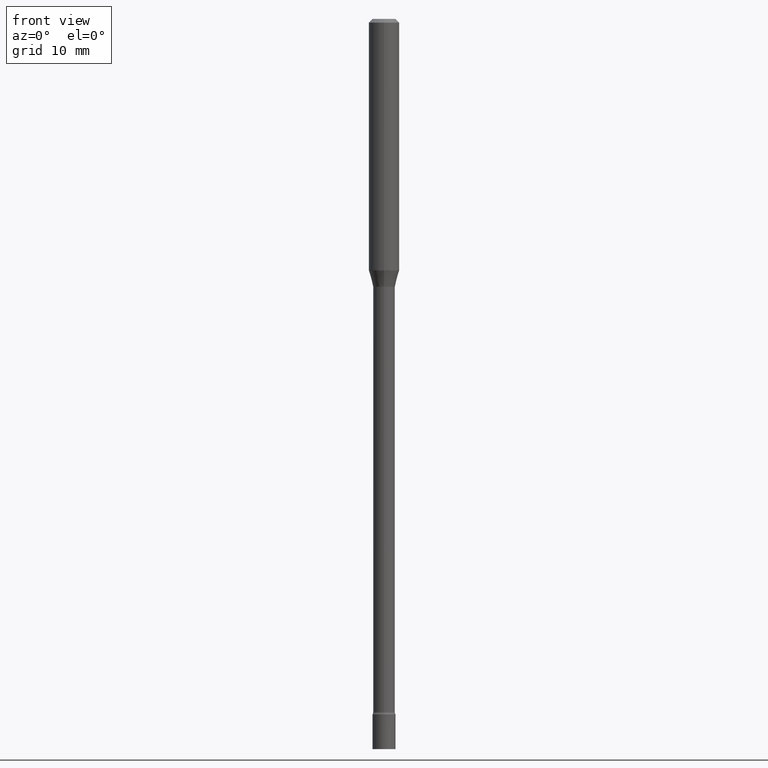
[diagram: clean part render]
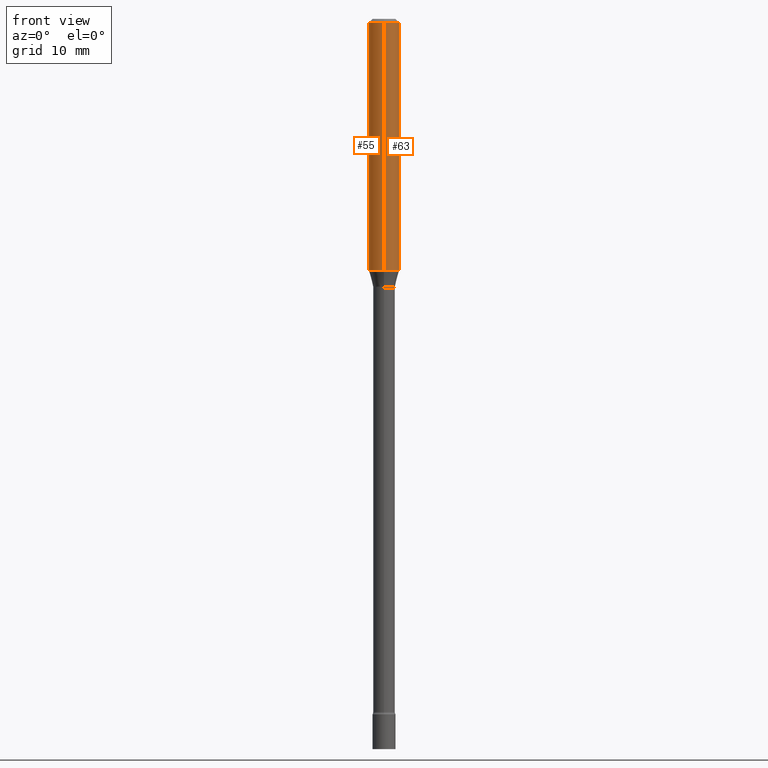
[diagram: same view with one multi-face feature highlighted, each face labeled with its STEP entity id]
A machine part, front view. The highlighted faces form ONE feature: a constant-radius fillet chain: 2 tangent blend faces with common blend radius 1.5875 mm. The faces share edges in the B-rep.
Their STEP definitions:
[1] entity #63 (Cylinder):
#3 = LINE ( 'NONE', #37, #436 ) ;
#16 = DIRECTION ( 'NONE',  ( -2.445476016362466426E-29, 3.491471013458831369E-15, 1.000000000000000000 ) ) ;
#22 = AXIS2_PLACEMENT_3D ( 'NONE', #224, #221, #446 ) ;
#27 = ORIENTED_EDGE ( 'NONE', *, *, #169, .T. ) ;
#37 = CARTESIAN_POINT ( 'NONE',  ( -4.364351673553916201E-16, -0.06250000000000000000, 2.182169383411769606E-16 ) ) ;
#59 = CARTESIAN_POINT ( 'NONE',  ( 2.527113080758372213E-29, -3.608026417010140878E-15, -1.033382893084896059 ) ) ;
#63 = ADVANCED_FACE ( 'NONE', ( #249 ), #403, .T. ) ;
#65 = VERTEX_POINT ( 'NONE', #398 ) ;
#79 = EDGE_CURVE ( 'NONE', #65, #240, #3, .T. ) ;
#101 = ORIENTED_EDGE ( 'NONE', *, *, #255, .T. ) ;
#119 = DIRECTION ( 'NONE',  ( -2.445476016362466426E-29, 3.491471013458831369E-15, 1.000000000000000000 ) ) ;
#123 = DIRECTION ( 'NONE',  ( -2.445476016362466426E-29, 3.491471013458831369E-15, 1.000000000000000000 ) ) ;
#169 = EDGE_CURVE ( 'NONE', #65, #410, #482, .T. ) ;
#170 = DIRECTION ( 'NONE',  ( -2.445476016362466426E-29, 3.491471013458831369E-15, 1.000000000000000000 ) ) ;
#171 = ORIENTED_EDGE ( 'NONE', *, *, #79, .F. ) ;
#192 = DIRECTION ( 'NONE',  ( -6.982962677686265922E-15, -1.000000000000000000, 4.370956789862821150E-15 ) ) ;
#213 = CARTESIAN_POINT ( 'NONE',  ( 0.000000000000000000, 0.000000000000000000, 0.000000000000000000 ) ) ;
#218 = CIRCLE ( 'NONE', #22, 0.06250000000000000000 ) ;
#219 = CARTESIAN_POINT ( 'NONE',  ( 4.440892098500877611E-16, 0.06249999999999638484, -1.033382893084896281 ) ) ;
#221 = DIRECTION ( 'NONE',  ( -2.445476016362466426E-29, 3.491471013458831369E-15, 1.000000000000000000 ) ) ;
#224 = CARTESIAN_POINT ( 'NONE',  ( 3.668214024543707189E-31, -5.237206520188257629E-17, -0.01500000000000003067 ) ) ;
#236 = AXIS2_PLACEMENT_3D ( 'NONE', #59, #16, #192 ) ;
#240 = VERTEX_POINT ( 'NONE', #242 ) ;
#242 = CARTESIAN_POINT ( 'NONE',  ( -4.364351673553912750E-16, -0.06250000000000005551, -0.01499999999999981209 ) ) ;
#244 = LINE ( 'NONE', #440, #450 ) ;
#249 = FACE_OUTER_BOUND ( 'NONE', #392, .T. ) ;
#250 = VERTEX_POINT ( 'NONE', #362 ) ;
#255 = EDGE_CURVE ( 'NONE', #410, #250, #244, .T. ) ;
#307 = AXIS2_PLACEMENT_3D ( 'NONE', #213, #123, #518 ) ;
#362 = CARTESIAN_POINT ( 'NONE',  ( 4.440892098500879583E-16, 0.06249999999999995143, -0.01500000000000024751 ) ) ;
#392 = EDGE_LOOP ( 'NONE', ( #27, #101, #474, #171 ) ) ;
#398 = CARTESIAN_POINT ( 'NONE',  ( -4.364351673553663766E-16, -0.06250000000000360822, -1.033382893084895837 ) ) ;
#403 = CYLINDRICAL_SURFACE ( 'NONE', #307, 0.06250000000000000000 ) ;
#410 = VERTEX_POINT ( 'NONE', #219 ) ;
#436 = VECTOR ( 'NONE', #170, 39.37007874015748143 ) ;
#440 = CARTESIAN_POINT ( 'NONE',  ( 4.440892098500625669E-16, 0.06250000000000000000, -2.182169383411769606E-16 ) ) ;
#446 = DIRECTION ( 'NONE',  ( -6.982962677686265922E-15, -1.000000000000000000, 3.483106191921935554E-15 ) ) ;
#450 = VECTOR ( 'NONE', #119, 39.37007874015748143 ) ;
#474 = ORIENTED_EDGE ( 'NONE', *, *, #491, .F. ) ;
#482 = CIRCLE ( 'NONE', #236, 0.06250000000000000000 ) ;
#491 = EDGE_CURVE ( 'NONE', #240, #250, #218, .T. ) ;
#518 = DIRECTION ( 'NONE',  ( -6.982962677686265922E-15, -1.000000000000000000, 3.491471013458831369E-15 ) ) ;
[2] entity #55 (Cylinder):
#1 = CYLINDRICAL_SURFACE ( 'NONE', #488, 0.06250000000000000000 ) ;
#3 = LINE ( 'NONE', #37, #436 ) ;
#8 = DIRECTION ( 'NONE',  ( -2.445476016362466426E-29, 3.491471013458831369E-15, 1.000000000000000000 ) ) ;
#11 = CIRCLE ( 'NONE', #330, 0.06250000000000000000 ) ;
#37 = CARTESIAN_POINT ( 'NONE',  ( -4.364351673553916201E-16, -0.06250000000000000000, 2.182169383411769606E-16 ) ) ;
#46 = CARTESIAN_POINT ( 'NONE',  ( 2.527113080758372213E-29, -3.608026417010140878E-15, -1.033382893084896059 ) ) ;
#55 = ADVANCED_FACE ( 'NONE', ( #367 ), #1, .T. ) ;
#65 = VERTEX_POINT ( 'NONE', #398 ) ;
#79 = EDGE_CURVE ( 'NONE', #65, #240, #3, .T. ) ;
#94 = DIRECTION ( 'NONE',  ( -6.982962677686265922E-15, -1.000000000000000000, 4.370956789862821150E-15 ) ) ;
#115 = EDGE_CURVE ( 'NONE', #250, #240, #428, .T. ) ;
#118 = DIRECTION ( 'NONE',  ( -2.445476016362466426E-29, 3.491471013458831369E-15, 1.000000000000000000 ) ) ;
#119 = DIRECTION ( 'NONE',  ( -2.445476016362466426E-29, 3.491471013458831369E-15, 1.000000000000000000 ) ) ;
#138 = ORIENTED_EDGE ( 'NONE', *, *, #115, .F. ) ;
#170 = DIRECTION ( 'NONE',  ( -2.445476016362466426E-29, 3.491471013458831369E-15, 1.000000000000000000 ) ) ;
#196 = AXIS2_PLACEMENT_3D ( 'NONE', #216, #118, #286 ) ;
#216 = CARTESIAN_POINT ( 'NONE',  ( 3.668214024543707189E-31, -5.237206520188257629E-17, -0.01500000000000003067 ) ) ;
#219 = CARTESIAN_POINT ( 'NONE',  ( 4.440892098500877611E-16, 0.06249999999999638484, -1.033382893084896281 ) ) ;
#240 = VERTEX_POINT ( 'NONE', #242 ) ;
#242 = CARTESIAN_POINT ( 'NONE',  ( -4.364351673553912750E-16, -0.06250000000000005551, -0.01499999999999981209 ) ) ;
#244 = LINE ( 'NONE', #440, #450 ) ;
#246 = CARTESIAN_POINT ( 'NONE',  ( 0.000000000000000000, 0.000000000000000000, 0.000000000000000000 ) ) ;
#250 = VERTEX_POINT ( 'NONE', #362 ) ;
#255 = EDGE_CURVE ( 'NONE', #410, #250, #244, .T. ) ;
#286 = DIRECTION ( 'NONE',  ( -6.982962677686265922E-15, -1.000000000000000000, 3.483106191921935554E-15 ) ) ;
#330 = AXIS2_PLACEMENT_3D ( 'NONE', #46, #8, #94 ) ;
#362 = CARTESIAN_POINT ( 'NONE',  ( 4.440892098500879583E-16, 0.06249999999999995143, -0.01500000000000024751 ) ) ;
#367 = FACE_OUTER_BOUND ( 'NONE', #368, .T. ) ;
#368 = EDGE_LOOP ( 'NONE', ( #389, #503, #417, #138 ) ) ;
#375 = EDGE_CURVE ( 'NONE', #410, #65, #11, .T. ) ;
#389 = ORIENTED_EDGE ( 'NONE', *, *, #255, .F. ) ;
#398 = CARTESIAN_POINT ( 'NONE',  ( -4.364351673553663766E-16, -0.06250000000000360822, -1.033382893084895837 ) ) ;
#400 = DIRECTION ( 'NONE',  ( -6.982962677686265922E-15, -1.000000000000000000, 3.491471013458831369E-15 ) ) ;
#410 = VERTEX_POINT ( 'NONE', #219 ) ;
#417 = ORIENTED_EDGE ( 'NONE', *, *, #79, .T. ) ;
#428 = CIRCLE ( 'NONE', #196, 0.06250000000000000000 ) ;
#436 = VECTOR ( 'NONE', #170, 39.37007874015748143 ) ;
#440 = CARTESIAN_POINT ( 'NONE',  ( 4.440892098500625669E-16, 0.06250000000000000000, -2.182169383411769606E-16 ) ) ;
#450 = VECTOR ( 'NONE', #119, 39.37007874015748143 ) ;
#488 = AXIS2_PLACEMENT_3D ( 'NONE', #246, #516, #400 ) ;
#503 = ORIENTED_EDGE ( 'NONE', *, *, #375, .T. ) ;
#516 = DIRECTION ( 'NONE',  ( -2.445476016362466426E-29, 3.491471013458831369E-15, 1.000000000000000000 ) ) ;